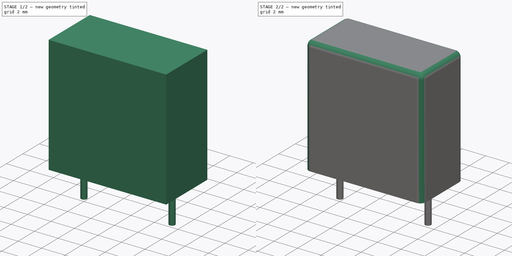
[diagram: build sequence overview — one tinted view per stage of 2, left to right]
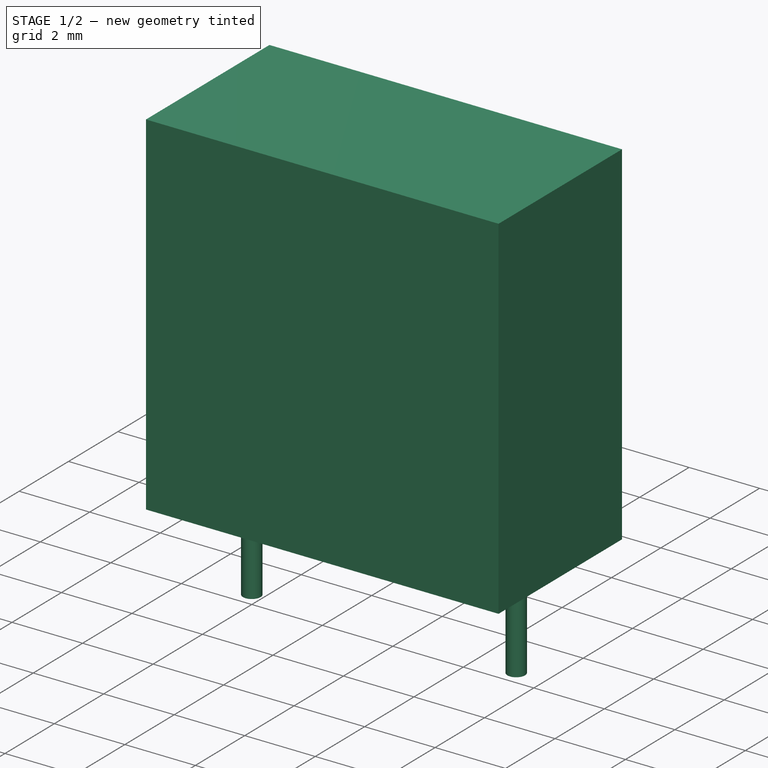
[diagram: stage 1 of 2 — iso view after this stage's code; geometry added in this stage tinted green]
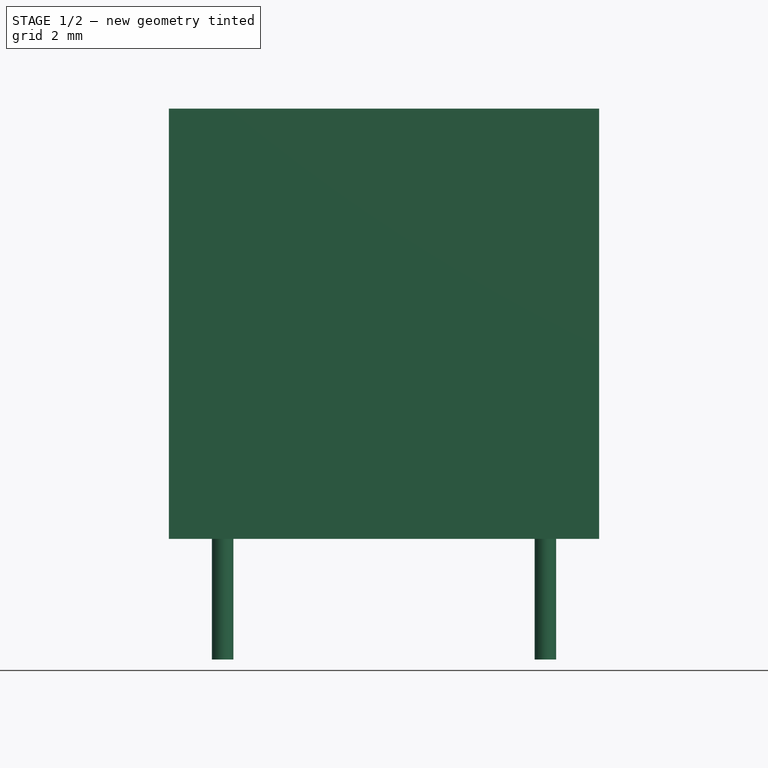
[diagram: stage 1 of 2 — front view after this stage's code; geometry added in this stage tinted green]
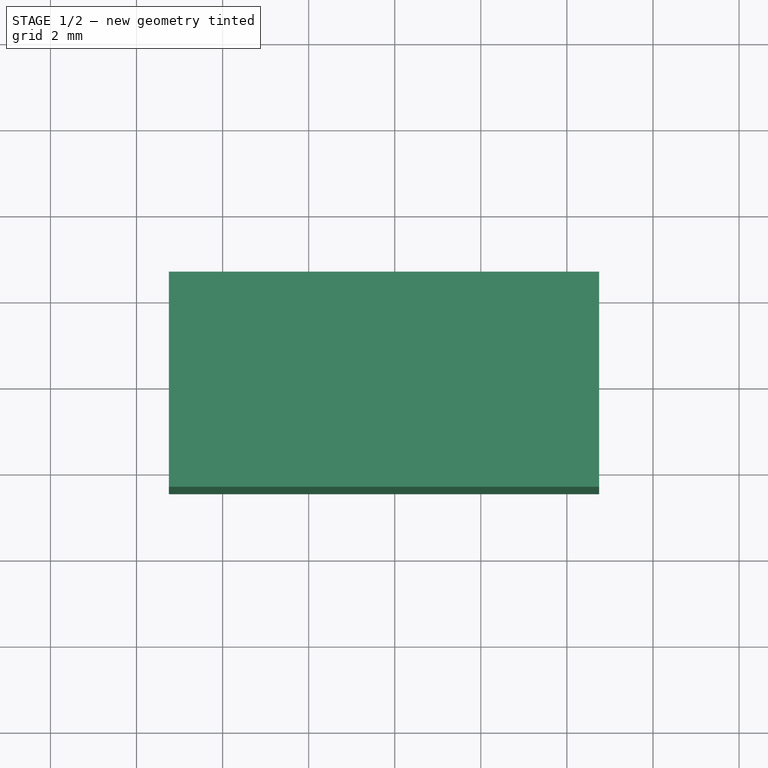
[diagram: stage 1 of 2 — top view after this stage's code; geometry added in this stage tinted green]
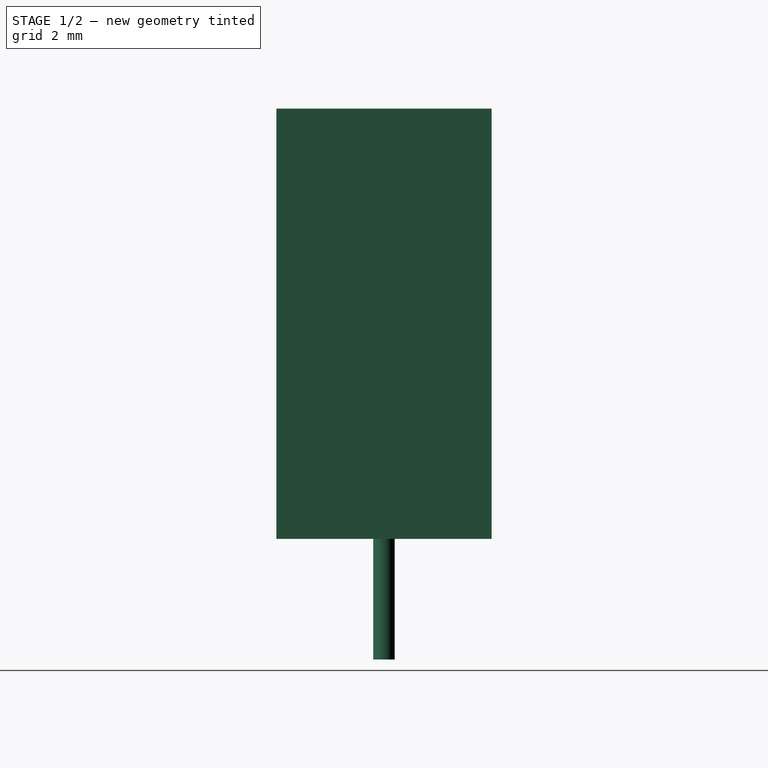
[diagram: stage 1 of 2 — right view after this stage's code; geometry added in this stage tinted green]
FCSTD DOCUMENT  (FreeCAD 0.16R6703 (Git))
Label: C_Rect_L10.0mm_W5.0mm_P5.00mm_P7.50mm
License: All rights reserved
LicenseURL: http://en.wikipedia.org/wiki/All_rights_reserved
objects: Sketcher::SketchObject×2, PartDesign::Pad×2, Spreadsheet::Sheet×1, PartDesign::Fillet×1
note: 7 computed .brp shape members not serialized (recipe doc carries the construction recipe); baked Part::Feature solids carry a one-line shape summary decoded from their .brp

FEATURE [Spreadsheet::Sheet] Spreadsheet
  cells = A1=Wx; B1(Wx)=10; A2=Wy; B2(Wy)=5; A3=RM; B3(RMx)=5; C3(RMy)=7.5; A4=d_wire; B4(d_wire)=0.5; A5=H; B5(H)=10; A6=offsetx; B6(offset_x)=1.25
FEATURE [Sketcher::SketchObject] Sketch
  Placement = pos=(0,0,0.1) rot=(0,0,1;0rad)
  expr: Constraints[11] = (Spreadsheet.Wx - max(Spreadsheet.RMx; Spreadsheet.RMy)) / 2
  expr: Constraints[10] = Spreadsheet.Wy / 2
  expr: Constraints[9] = Spreadsheet.Wy
  expr: Constraints[8] = Spreadsheet.Wx
  sketch-geometry (4):
    g0: LineSegment StartX=-1.25 StartY=2.5 StartZ=0 EndX=8.75 EndY=2.5 EndZ=0
    g1: LineSegment StartX=8.75 StartY=2.5 StartZ=0 EndX=8.75 EndY=-2.5 EndZ=0
    g2: LineSegment StartX=8.75 StartY=-2.5 StartZ=0 EndX=-1.25 EndY=-2.5 EndZ=0
    g3: LineSegment StartX=-1.25 StartY=-2.5 StartZ=0 EndX=-1.25 EndY=2.5 EndZ=0
  constraints (12):
    c: Coincident(g0,g1)
    c: Coincident(g1,g2)
    c: Coincident(g2,g3)
    c: Coincident(g3,g0)
    c: Horizontal(g0)
    c: Horizontal(g2)
    c: Vertical(g1)
    c: Vertical(g3)
    c: DistanceX(g0,g0) = 10
    c: DistanceY(g1,g1) = 5
    c: DistanceY(g-1,g0) = 2.5
    c: DistanceX(g2,g-1) = 1.25
FEATURE [PartDesign::Pad] Pad
  Length = 10
  Length2 = 100
  Placement = pos=(0,0,0.1) rot=(0,0,1;0rad)
  Sketch = -> Sketch
  Type = 0
  expr: Length = Spreadsheet.H
FEATURE [Sketcher::SketchObject] Sketch001
  Placement = pos=(0,0,0.5) rot=(0,0,1;0rad)
  expr: Constraints[3] = Spreadsheet.d_wire / 2
  expr: Constraints[2] = max(Spreadsheet.RMx; Spreadsheet.RMy)
  sketch-geometry (2):
    g0: Circle CenterX=0 CenterY=0 CenterZ=0 NormalX=0 NormalY=0 NormalZ=1 Radius=0.25
    g1: Circle CenterX=7.5 CenterY=0 CenterZ=0 NormalX=0 NormalY=0 NormalZ=1 Radius=0.25
  constraints (5):
    c: Coincident(g0,g-1)
    c: PointOnObject(g1,g-1)
    c: DistanceX(g-1,g1) = 7.5
    c: Radius(g0) = 0.25
    c: Equal(g0,g1)
FEATURE [PartDesign::Pad] Pad001
  Length = 3.2
  Length2 = 100
  Placement = pos=(0,0,0.5) rot=(0,0,1;0rad)
  Reversed = true
  Sketch = -> Sketch001
  Type = 0
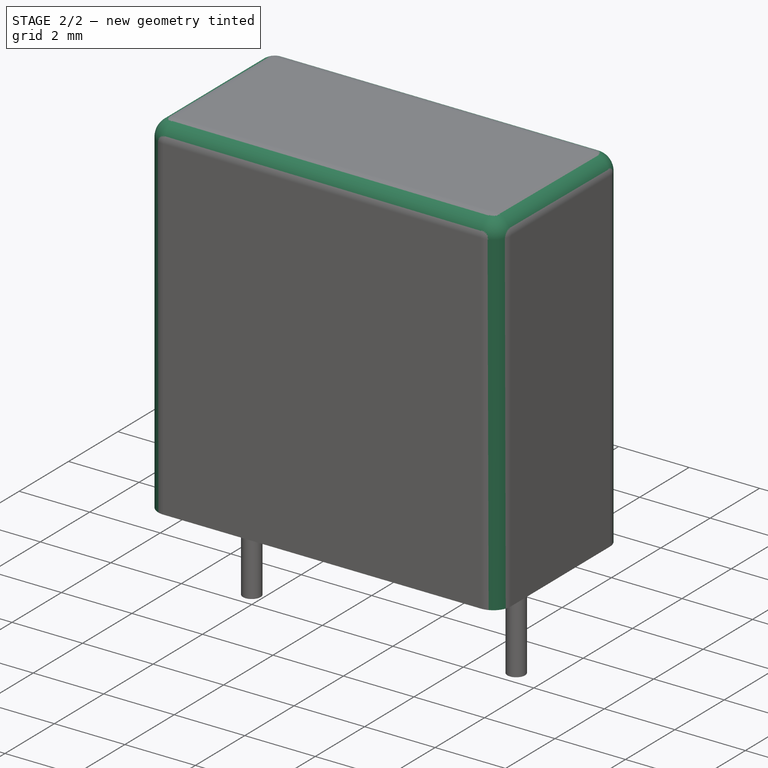
[diagram: stage 2 of 2 — iso view after this stage's code; geometry added in this stage tinted green]
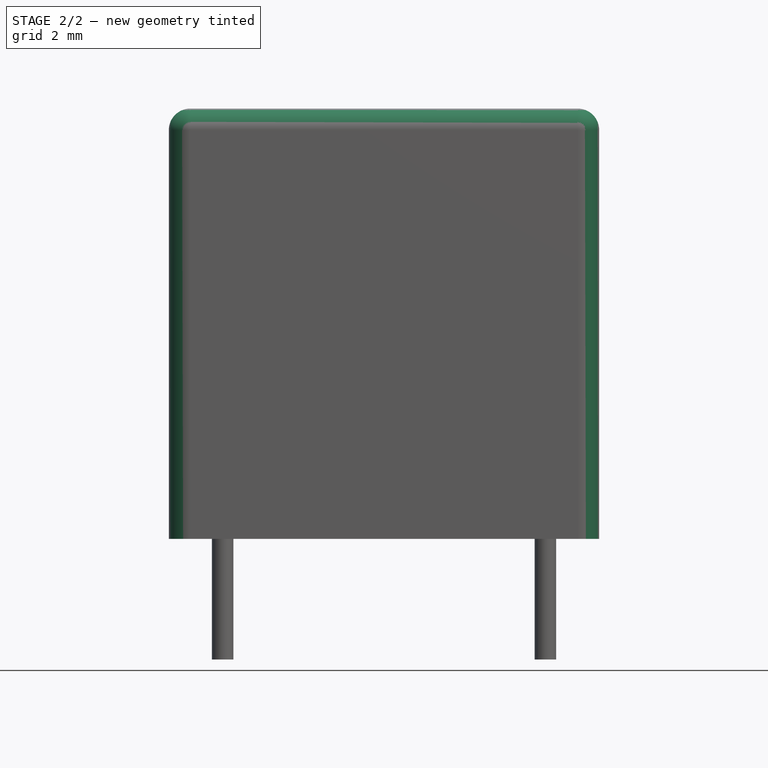
[diagram: stage 2 of 2 — front view after this stage's code; geometry added in this stage tinted green]
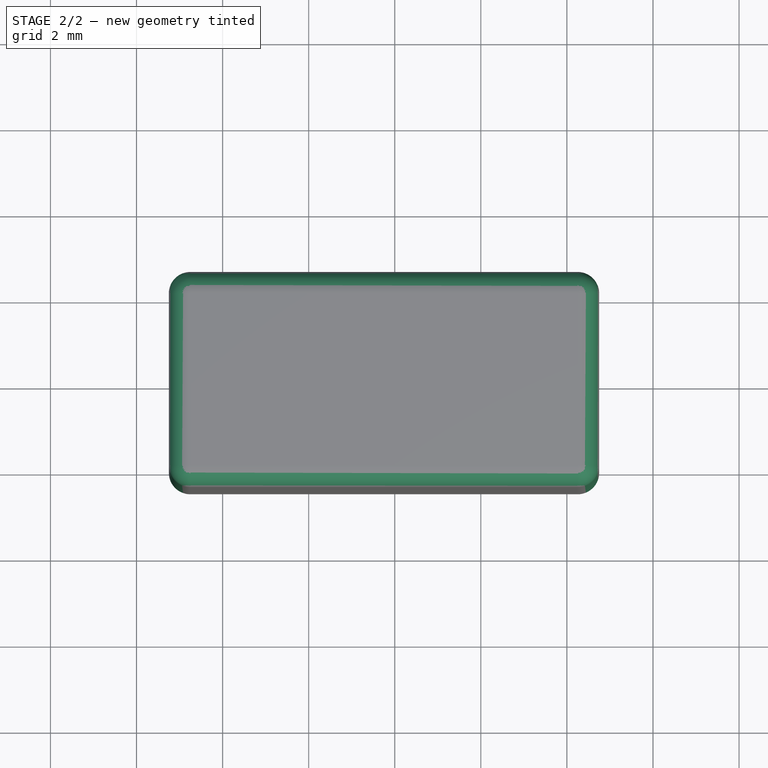
[diagram: stage 2 of 2 — top view after this stage's code; geometry added in this stage tinted green]
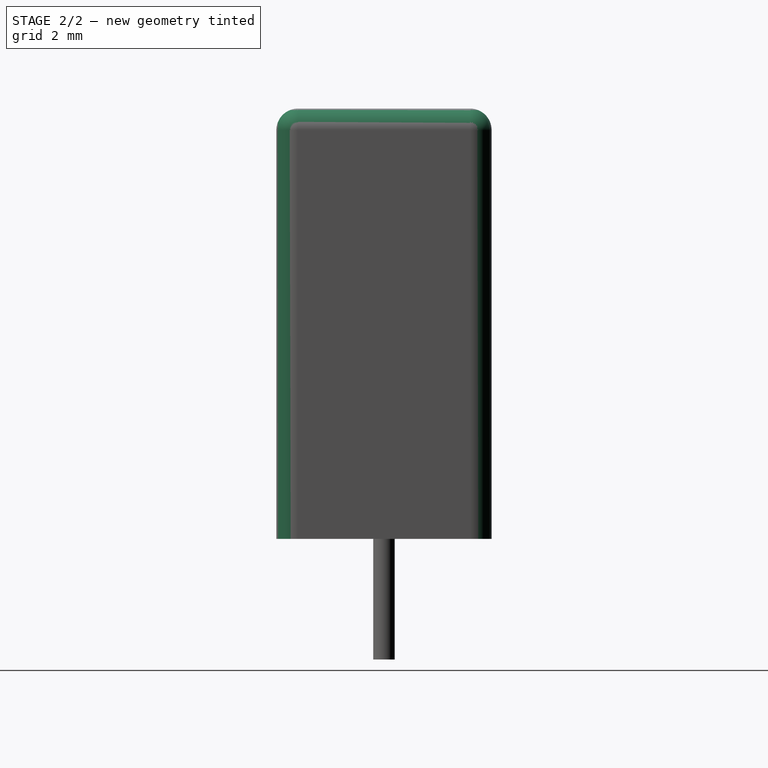
[diagram: stage 2 of 2 — right view after this stage's code; geometry added in this stage tinted green]
FEATURE [PartDesign::Fillet] Fillet
  Base = -> Pad [Edge12,Edge8,Edge10,Edge5,Edge7,Edge2,Edge4,Edge1]
  Placement = pos=(0,0,0.1) rot=(0,0,1;0rad)
  Radius = 0.5
  expr: Radius = Spreadsheet.Wy * 0.1
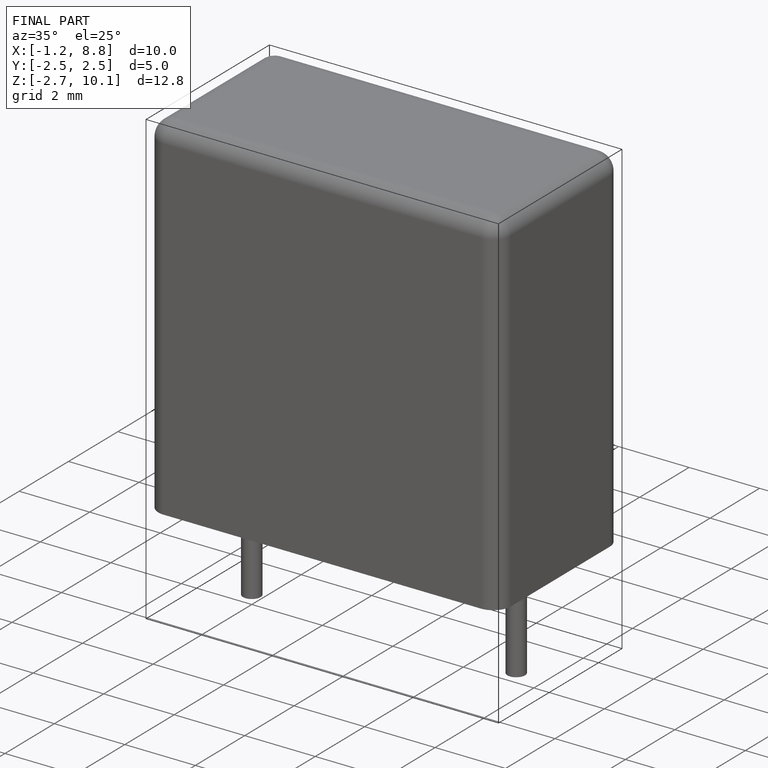
[diagram: finished part — iso view with bounding-box wireframe]
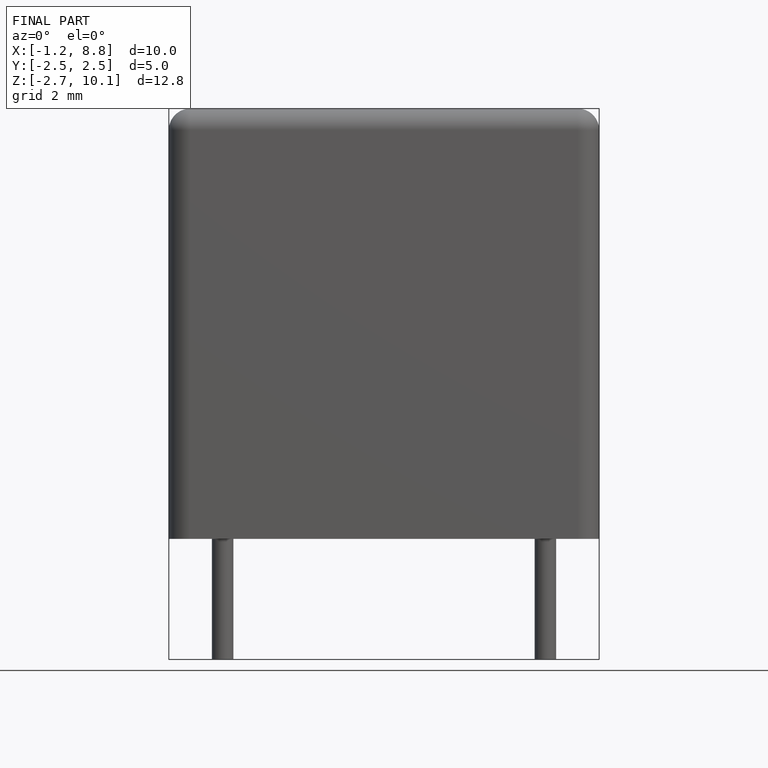
[diagram: finished part — front view with bounding-box wireframe]
